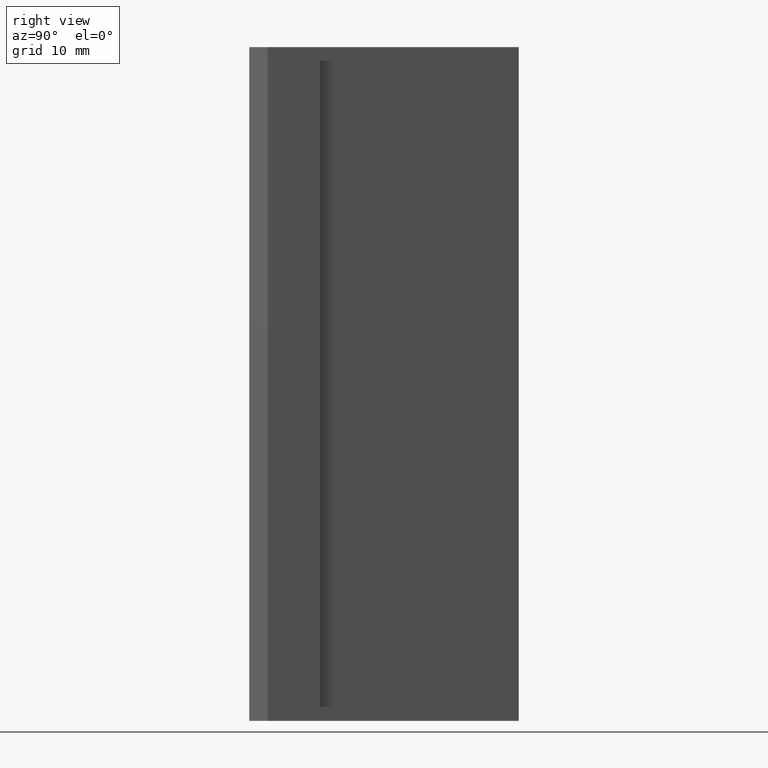
[diagram: clean part render]
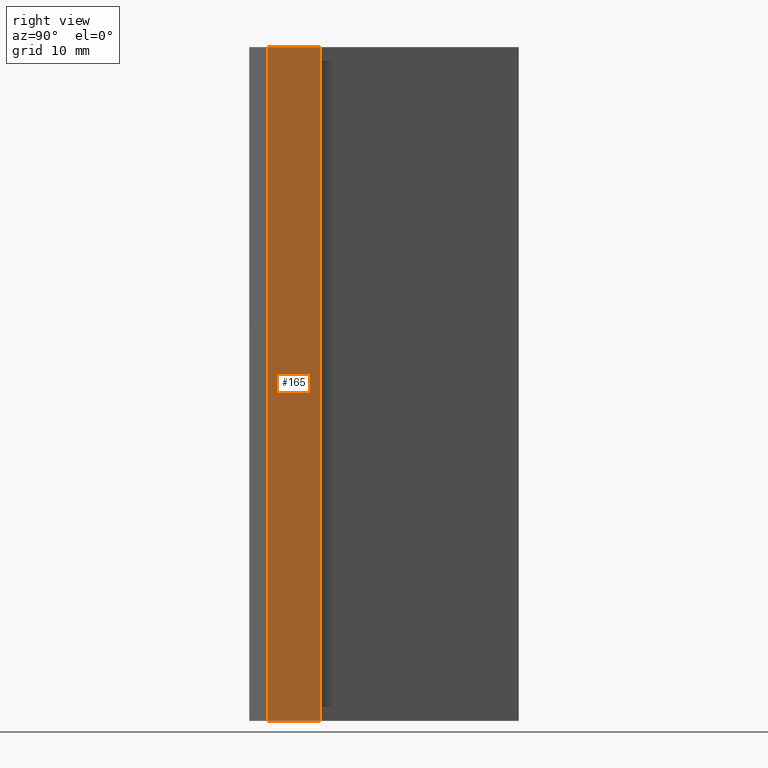
[diagram: same view with one face highlighted and labeled with its STEP entity id]
A machine part, right view. The second image highlights one B-rep face of the part: STEP entity #165.
In plain terms, the highlighted planar face has unit normal (1, 0, 0).
Its self-contained STEP definition (entity closure, byte-faithful):
#109=CARTESIAN_POINT('',(6.749999999972943,2.749999999988631,0.0));
#110=VERTEX_POINT('',#109);
#117=CARTESIAN_POINT('',(6.749999999972943,2.749999999988631,100.0));
#118=VERTEX_POINT('',#117);
#119=CARTESIAN_POINT('',(6.749999999972943,2.749999999988631,0.0));
#120=DIRECTION('',(0.0,0.0,1.0));
#121=VECTOR('',#120,100.0);
#122=LINE('',#119,#121);
#123=EDGE_CURVE('',#110,#118,#122,.T.);
#135=CARTESIAN_POINT('',(6.749999999972943,2.749999999988631,0.0));
#136=DIRECTION('',(1.0,0.0,0.0));
#137=DIRECTION('',(0.0,1.0,0.0));
#138=AXIS2_PLACEMENT_3D('',#135,#136,#137);
#139=PLANE('',#138);
#140=CARTESIAN_POINT('',(6.749999999972943,10.499999999957708,0.0));
#141=VERTEX_POINT('',#140);
#142=CARTESIAN_POINT('',(6.749999999972943,2.749999999988710,0.0));
#143=DIRECTION('',(0.0,1.0,0.0));
#144=VECTOR('',#143,7.749999999968998);
#145=LINE('',#142,#144);
#146=EDGE_CURVE('',#110,#141,#145,.T.);
#147=ORIENTED_EDGE('',*,*,#146,.T.);
#148=CARTESIAN_POINT('',(6.749999999972943,10.499999999957708,100.0));
#149=VERTEX_POINT('',#148);
#150=CARTESIAN_POINT('',(6.749999999972943,10.499999999957708,0.0));
#151=DIRECTION('',(0.0,0.0,1.0));
#152=VECTOR('',#151,100.0);
#153=LINE('',#150,#152);
#154=EDGE_CURVE('',#141,#149,#153,.T.);
#155=ORIENTED_EDGE('',*,*,#154,.T.);
#156=CARTESIAN_POINT('',(6.749999999972943,2.749999999988710,100.0));
#157=DIRECTION('',(0.0,1.0,0.0));
#158=VECTOR('',#157,7.749999999968998);
#159=LINE('',#156,#158);
#160=EDGE_CURVE('',#118,#149,#159,.T.);
#161=ORIENTED_EDGE('',*,*,#160,.F.);
#162=ORIENTED_EDGE('',*,*,#123,.F.);
#163=EDGE_LOOP('',(#147,#155,#161,#162));
#164=FACE_OUTER_BOUND('',#163,.T.);
#165=ADVANCED_FACE('',(#164),#139,.T.);